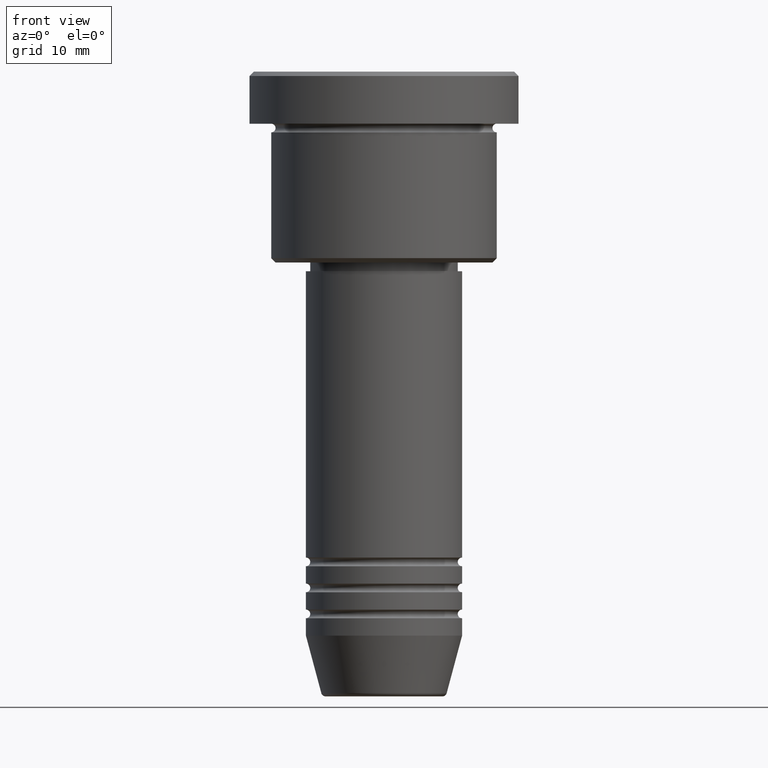
[diagram: clean part render]
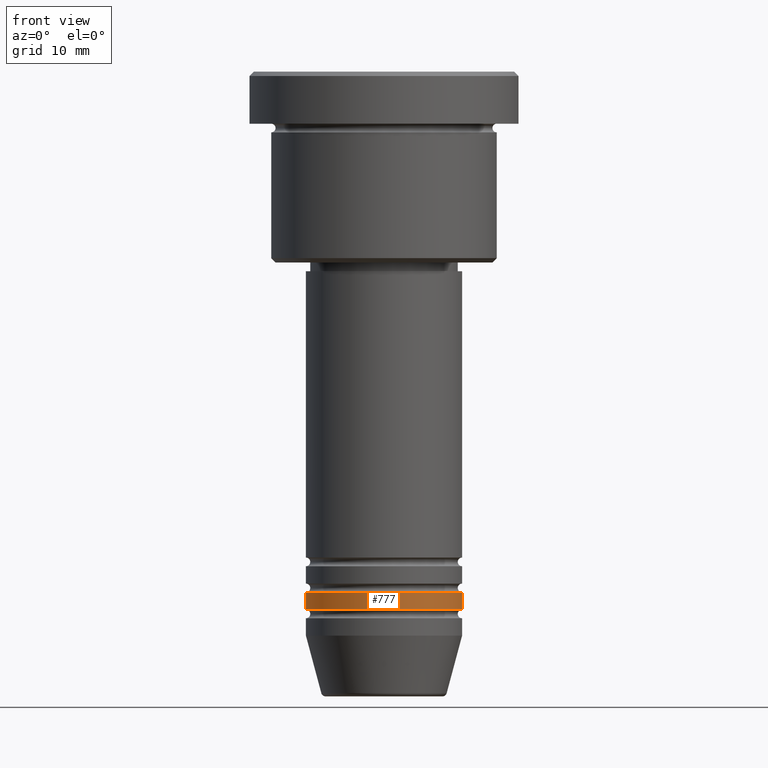
[diagram: same view with one face highlighted and labeled with its STEP entity id]
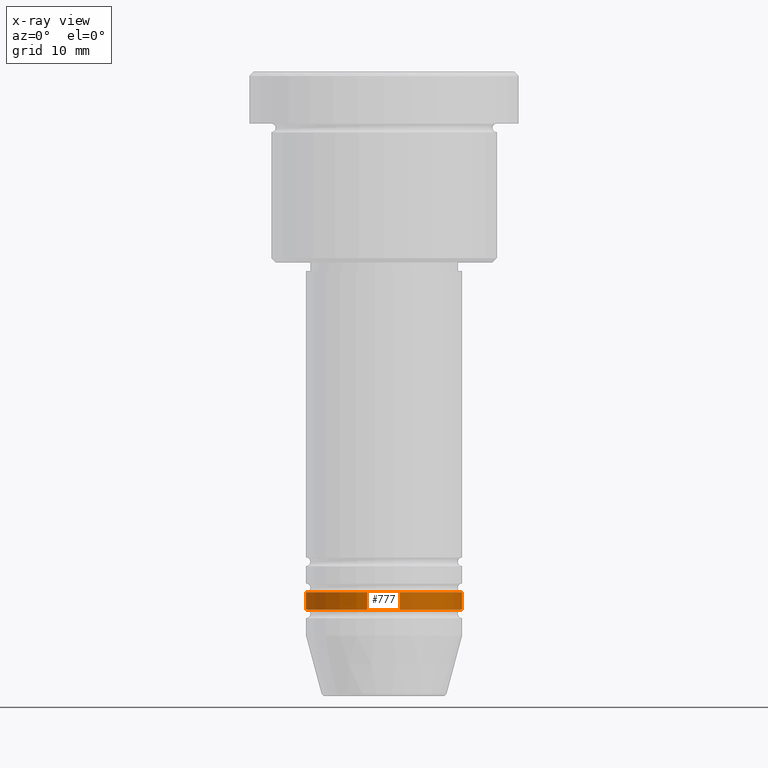
[diagram: x-ray of the same camera — body ghosted, the highlighted face saturated]
A machine part, front view. The second image highlights one B-rep face of the part: STEP entity #777.
The next image is the same camera in x-ray: the body ghosted, the highlighted face saturated — about 0% of this face is hidden behind the body in this view.
In plain terms, the highlighted cylindrical surface (partial cylindrical patch) has radius 9 mm, axis along (-0, -0, 1).
Its self-contained STEP definition (entity closure, byte-faithful):
#63 = AXIS2_PLACEMENT_3D ( 'NONE', #576, #1042, #864 ) ;
#74 = VERTEX_POINT ( 'NONE', #527 ) ;
#100 = DIRECTION ( 'NONE',  ( -0.000000000000000000, -0.000000000000000000, 1.000000000000000000 ) ) ;
#128 = CARTESIAN_POINT ( 'NONE',  ( -9.000000000000000000, 1.102182119232617714E-15, 0.000000000000000000 ) ) ;
#149 = EDGE_CURVE ( 'NONE', #1133, #899, #292, .T. ) ;
#156 = CARTESIAN_POINT ( 'NONE',  ( 9.000000000000000000, 0.000000000000000000, -61.99999999999998579 ) ) ;
#230 = CIRCLE ( 'NONE', #610, 9.000000000000000000 ) ;
#284 = DIRECTION ( 'NONE',  ( -0.000000000000000000, -0.000000000000000000, 1.000000000000000000 ) ) ;
#292 = LINE ( 'NONE', #128, #921 ) ;
#354 = DIRECTION ( 'NONE',  ( 1.000000000000000000, 0.000000000000000000, 0.000000000000000000 ) ) ;
#367 = ORIENTED_EDGE ( 'NONE', *, *, #506, .T. ) ;
#385 = EDGE_CURVE ( 'NONE', #523, #74, #486, .T. ) ;
#425 = CIRCLE ( 'NONE', #63, 9.000000000000000000 ) ;
#486 = LINE ( 'NONE', #1100, #827 ) ;
#496 = ORIENTED_EDGE ( 'NONE', *, *, #644, .F. ) ;
#506 = EDGE_CURVE ( 'NONE', #1133, #523, #425, .T. ) ;
#523 = VERTEX_POINT ( 'NONE', #156 ) ;
#527 = CARTESIAN_POINT ( 'NONE',  ( 9.000000000000000000, 0.000000000000000000, -59.99999999999998579 ) ) ;
#535 = CYLINDRICAL_SURFACE ( 'NONE', #733, 9.000000000000000000 ) ;
#572 = DIRECTION ( 'NONE',  ( -0.000000000000000000, -0.000000000000000000, 1.000000000000000000 ) ) ;
#576 = CARTESIAN_POINT ( 'NONE',  ( 0.000000000000000000, 0.000000000000000000, -61.99999999999998579 ) ) ;
#610 = AXIS2_PLACEMENT_3D ( 'NONE', #893, #734, #1069 ) ;
#626 = ORIENTED_EDGE ( 'NONE', *, *, #149, .F. ) ;
#644 = EDGE_CURVE ( 'NONE', #899, #74, #230, .T. ) ;
#733 = AXIS2_PLACEMENT_3D ( 'NONE', #812, #100, #354 ) ;
#734 = DIRECTION ( 'NONE',  ( -0.000000000000000000, -0.000000000000000000, 1.000000000000000000 ) ) ;
#736 = CARTESIAN_POINT ( 'NONE',  ( -9.000000000000000000, 1.102182119232617714E-15, -61.99999999999998579 ) ) ;
#777 = ADVANCED_FACE ( 'NONE', ( #997 ), #535, .T. ) ;
#812 = CARTESIAN_POINT ( 'NONE',  ( 0.000000000000000000, 0.000000000000000000, 0.000000000000000000 ) ) ;
#827 = VECTOR ( 'NONE', #284, 1000.000000000000000 ) ;
#864 = DIRECTION ( 'NONE',  ( 1.000000000000000000, 0.000000000000000000, 0.000000000000000000 ) ) ;
#893 = CARTESIAN_POINT ( 'NONE',  ( 0.000000000000000000, 0.000000000000000000, -59.99999999999998579 ) ) ;
#899 = VERTEX_POINT ( 'NONE', #939 ) ;
#921 = VECTOR ( 'NONE', #572, 1000.000000000000000 ) ;
#939 = CARTESIAN_POINT ( 'NONE',  ( -9.000000000000000000, 1.102182119232617714E-15, -59.99999999999998579 ) ) ;
#997 = FACE_OUTER_BOUND ( 'NONE', #1160, .T. ) ;
#1042 = DIRECTION ( 'NONE',  ( -0.000000000000000000, -0.000000000000000000, 1.000000000000000000 ) ) ;
#1069 = DIRECTION ( 'NONE',  ( 1.000000000000000000, 0.000000000000000000, 0.000000000000000000 ) ) ;
#1100 = CARTESIAN_POINT ( 'NONE',  ( 9.000000000000000000, 0.000000000000000000, 0.000000000000000000 ) ) ;
#1133 = VERTEX_POINT ( 'NONE', #736 ) ;
#1160 = EDGE_LOOP ( 'NONE', ( #626, #367, #1180, #496 ) ) ;
#1180 = ORIENTED_EDGE ( 'NONE', *, *, #385, .T. ) ;